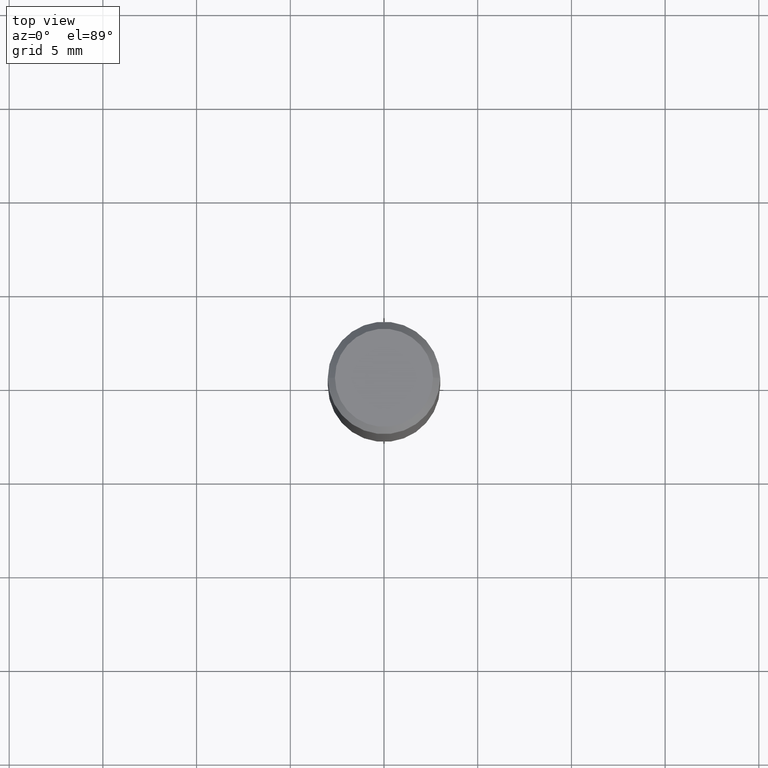
[diagram: clean part render]
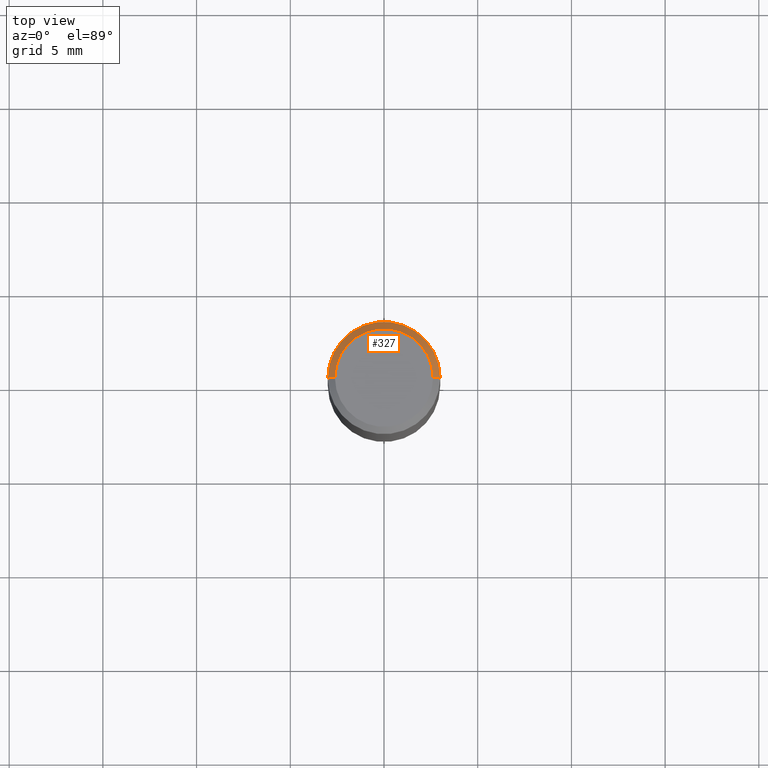
[diagram: same view with one face highlighted and labeled with its STEP entity id]
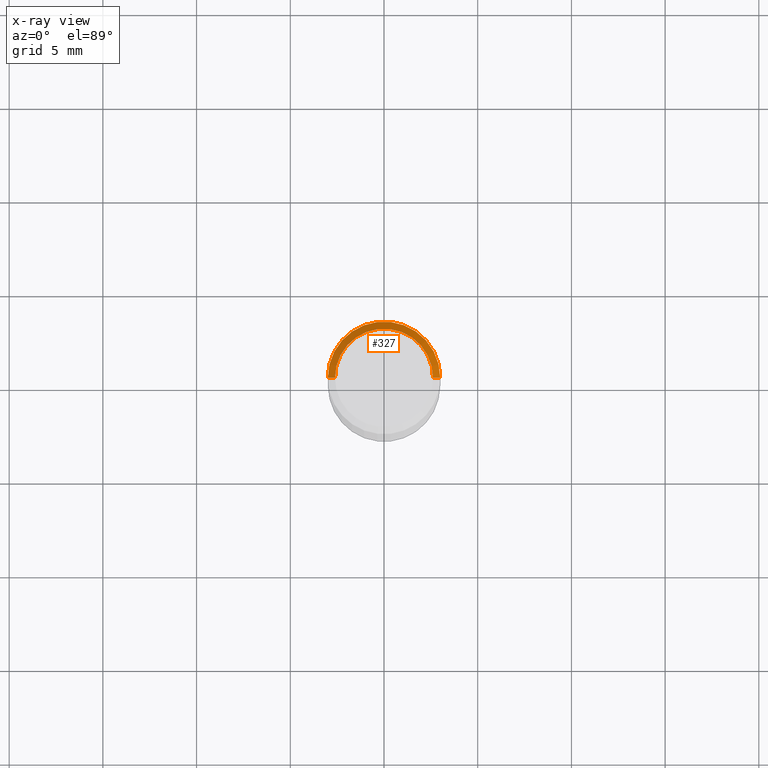
[diagram: x-ray of the same camera — body ghosted, the highlighted face saturated]
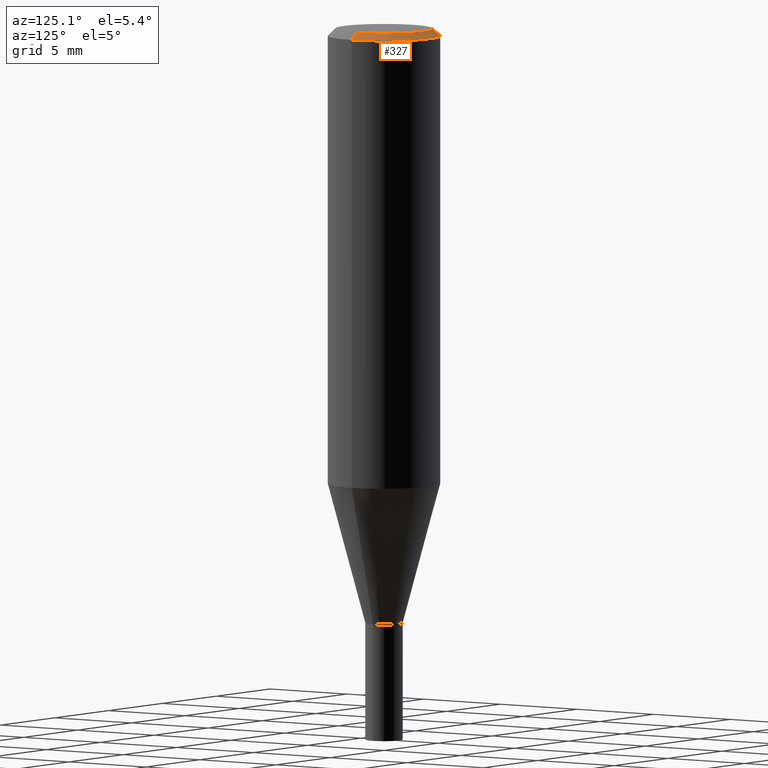
[diagram: same view with one face highlighted and labeled with its STEP entity id]
A machine part, top view. The second image highlights one B-rep face of the part: STEP entity #327.
The next image is the same camera in x-ray: the body ghosted, the highlighted face saturated — about 0% of this face is hidden behind the body in this view.
A second angle (auxiliary view) of the same face is appended — the face is thin or edge-on in the first view.
In plain terms, the highlighted conical surface has half-angle 45 deg.
Its self-contained STEP definition (entity closure, byte-faithful):
#5 = CARTESIAN_POINT ( 'NONE',  ( -0.1180999999999999966, 7.723156721521009862E-16, -0.01499999999999999944 ) ) ;
#6 = CIRCLE ( 'NONE', #183, 0.1180999999999999966 ) ;
#14 = DIRECTION ( 'NONE',  ( 1.000000000000000000, -6.982962677686265922E-15, 4.824495916043694704E-29 ) ) ;
#17 = LINE ( 'NONE', #154, #358 ) ;
#19 = CARTESIAN_POINT ( 'NONE',  ( 3.668203209277705088E-31, -5.237222008264718399E-17, -0.01499999999999999944 ) ) ;
#25 = EDGE_CURVE ( 'NONE', #437, #236, #387, .T. ) ;
#57 = VECTOR ( 'NONE', #398, 39.37007874015748143 ) ;
#63 = DIRECTION ( 'NONE',  ( -2.445468806185136597E-29, 3.491481338843145583E-15, 1.000000000000000000 ) ) ;
#92 = DIRECTION ( 'NONE',  ( -2.445468806185136597E-29, 3.491481338843145583E-15, 1.000000000000000000 ) ) ;
#96 = CONICAL_SURFACE ( 'NONE', #153, 0.1180999999999999966, 0.7853981633974160825 ) ;
#134 = CARTESIAN_POINT ( 'NONE',  ( 0.1180999999999999966, -8.770601123173952432E-16, -0.01499999999999999944 ) ) ;
#152 = ORIENTED_EDGE ( 'NONE', *, *, #171, .F. ) ;
#153 = AXIS2_PLACEMENT_3D ( 'NONE', #380, #409, #192 ) ;
#154 = CARTESIAN_POINT ( 'NONE',  ( 0.1180999999999999966, -8.625970336194650129E-16, -0.01499999999999999944 ) ) ;
#171 = EDGE_CURVE ( 'NONE', #236, #373, #209, .T. ) ;
#183 = AXIS2_PLACEMENT_3D ( 'NONE', #19, #92, #374 ) ;
#192 = DIRECTION ( 'NONE',  ( -1.000000000000000000, 6.982962677686266711E-15, 0.000000000000000000 ) ) ;
#202 = CARTESIAN_POINT ( 'NONE',  ( -2.356111900284270779E-44, 3.363903359250623461E-30, 9.634602143871708828E-16 ) ) ;
#204 = VERTEX_POINT ( 'NONE', #134 ) ;
#209 = LINE ( 'NONE', #5, #57 ) ;
#236 = VERTEX_POINT ( 'NONE', #421 ) ;
#237 = CARTESIAN_POINT ( 'NONE',  ( 0.1031000000000000111, -7.849571885948532984E-16, 9.634602143871762076E-16 ) ) ;
#297 = ORIENTED_EDGE ( 'NONE', *, *, #383, .T. ) ;
#298 = DIRECTION ( 'NONE',  ( 0.7071067811865247021, -7.319954787623178737E-15, -0.7071067811865703323 ) ) ;
#307 = FACE_OUTER_BOUND ( 'NONE', #417, .T. ) ;
#325 = EDGE_CURVE ( 'NONE', #204, #373, #6, .T. ) ;
#327 = ADVANCED_FACE ( 'NONE', ( #307 ), #96, .T. ) ;
#338 = ORIENTED_EDGE ( 'NONE', *, *, #325, .T. ) ;
#358 = VECTOR ( 'NONE', #298, 39.37007874015748143 ) ;
#369 = CARTESIAN_POINT ( 'NONE',  ( -0.1180999999999999966, -8.627733515136660128E-16, -0.01499999999999999944 ) ) ;
#373 = VERTEX_POINT ( 'NONE', #369 ) ;
#374 = DIRECTION ( 'NONE',  ( 1.000000000000000000, -6.982962677686266711E-15, 0.000000000000000000 ) ) ;
#380 = CARTESIAN_POINT ( 'NONE',  ( 3.668203209277705088E-31, -5.237222008264718399E-17, -0.01499999999999999944 ) ) ;
#383 = EDGE_CURVE ( 'NONE', #437, #204, #17, .T. ) ;
#387 = CIRCLE ( 'NONE', #464, 0.1031000000000000111 ) ;
#398 = DIRECTION ( 'NONE',  ( -0.7071067811865247021, 2.468850131082017641E-15, -0.7071067811865703323 ) ) ;
#409 = DIRECTION ( 'NONE',  ( 2.445468806185136597E-29, -3.491481338843145583E-15, -1.000000000000000000 ) ) ;
#417 = EDGE_LOOP ( 'NONE', ( #425, #297, #338, #152 ) ) ;
#421 = CARTESIAN_POINT ( 'NONE',  ( -0.1031000000000000111, 7.461295621107793201E-16, 9.634602143871657552E-16 ) ) ;
#425 = ORIENTED_EDGE ( 'NONE', *, *, #25, .F. ) ;
#437 = VERTEX_POINT ( 'NONE', #237 ) ;
#464 = AXIS2_PLACEMENT_3D ( 'NONE', #202, #63, #14 ) ;